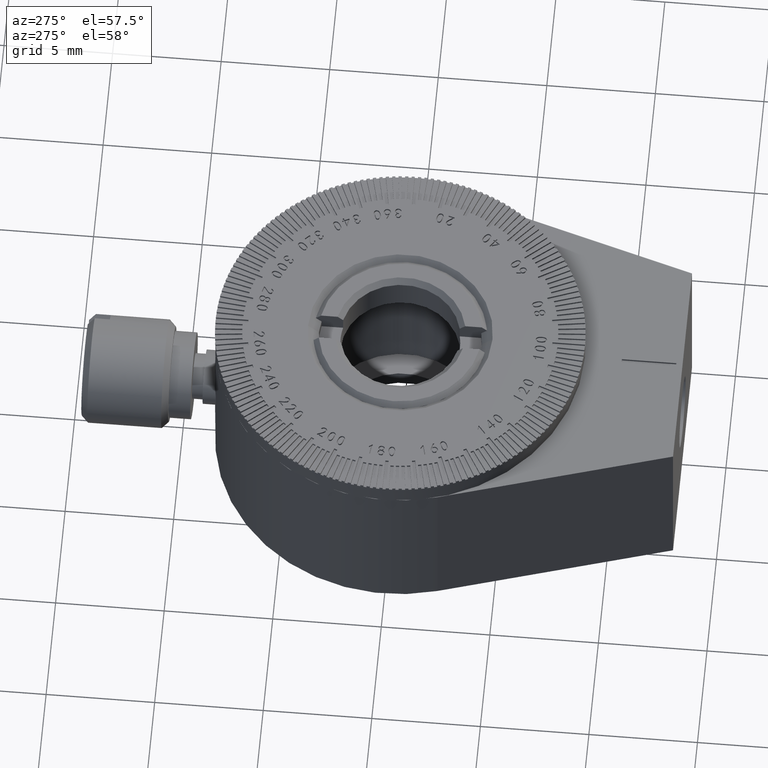
[diagram: clean part render]
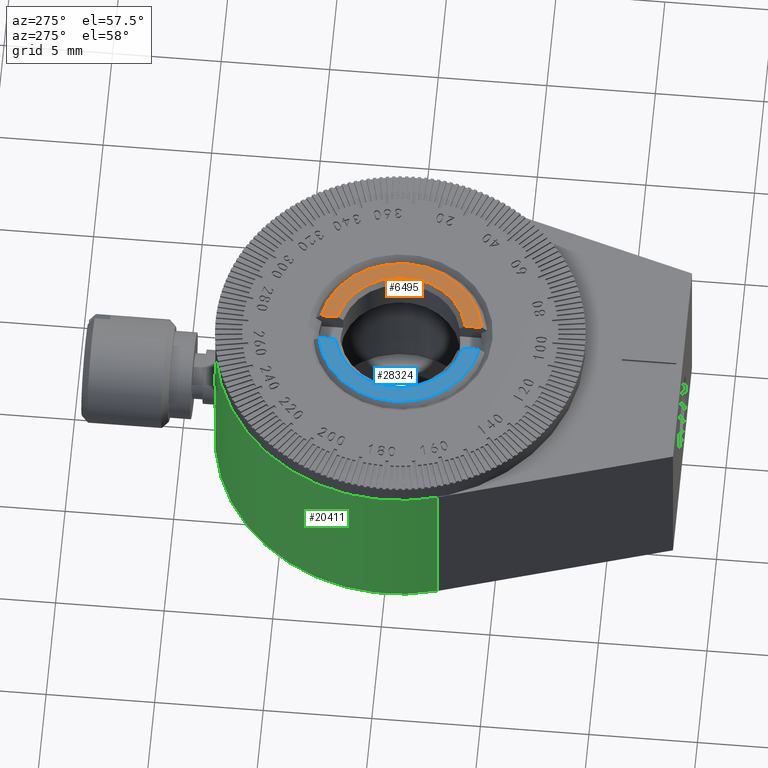
[diagram: same view with three faces highlighted in distinct colors, each labeled with its STEP entity id]
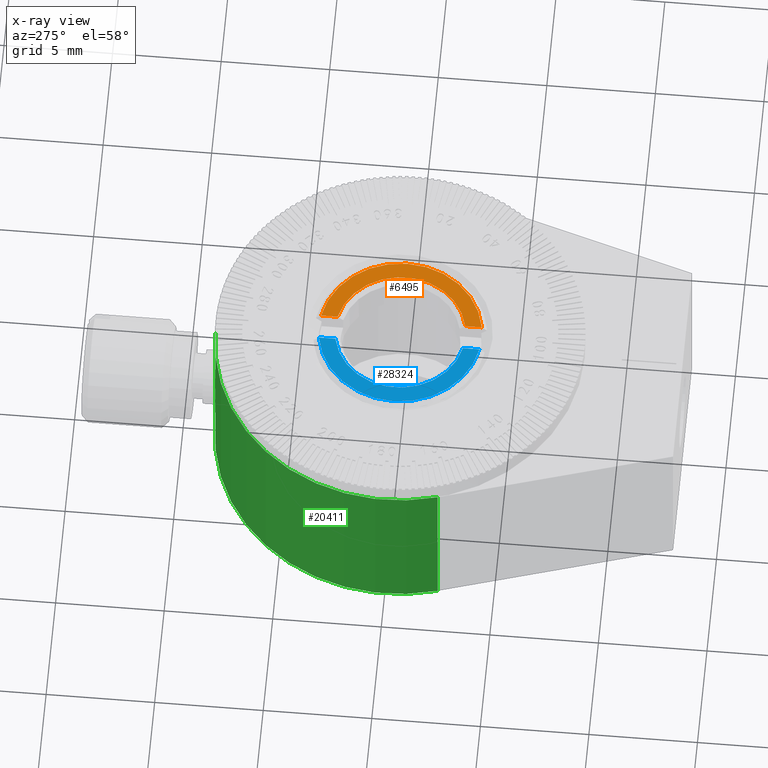
[diagram: x-ray of the same camera — body ghosted, the three highlighted faces saturated]
A machine part, auxiliary view with three faces highlighted in distinct colors.
The next image is the same camera in x-ray (body ghosted, the three faces saturated) — at least one of them is partly hidden behind the body in this view.
Their STEP definitions:

[orange] entity #6495 — the highlighted planar face has unit normal (-0, 0, 1).
#2177 = CIRCLE ( 'NONE', #32924, 3.000000000000004441 ) ;
#5446 = ORIENTED_EDGE ( 'NONE', *, *, #44589, .T. ) ;
#6495 = ADVANCED_FACE ( 'NONE', ( #52952 ), #53271, .T. ) ;
#7270 = EDGE_LOOP ( 'NONE', ( #31209, #5446, #46829, #28589 ) ) ;
#8771 = DIRECTION ( 'NONE',  ( 1.000000000000000000, 0.000000000000000000, 0.000000000000000000 ) ) ;
#9619 = EDGE_CURVE ( 'NONE', #44584, #45921, #2177, .T. ) ;
#13381 = DIRECTION ( 'NONE',  ( 1.000000000000000000, 0.000000000000000000, 0.000000000000000000 ) ) ;
#14407 = CARTESIAN_POINT ( 'NONE',  ( 0.000000000000000000, 0.000000000000000000, 0.000000000000000000 ) ) ;
#16378 = CARTESIAN_POINT ( 'NONE',  ( -2.939387691339818254, -0.5999999999999998668, 0.000000000000000000 ) ) ;
#20214 = CARTESIAN_POINT ( 'NONE',  ( 0.000000000000000000, 0.000000000000000000, 0.000000000000000000 ) ) ;
#23450 = AXIS2_PLACEMENT_3D ( 'NONE', #20214, #43631, #63227 ) ;
#28589 = ORIENTED_EDGE ( 'NONE', *, *, #9619, .T. ) ;
#31209 = ORIENTED_EDGE ( 'NONE', *, *, #48348, .F. ) ;
#32059 = VECTOR ( 'NONE', #8771, 1000.000000000000000 ) ;
#32924 = AXIS2_PLACEMENT_3D ( 'NONE', #14407, #62560, #57111 ) ;
#33700 = EDGE_CURVE ( 'NONE', #44584, #47563, #37984, .T. ) ;
#34196 = CARTESIAN_POINT ( 'NONE',  ( 0.000000000000000000, 0.000000000000000000, 0.000000000000000000 ) ) ;
#37984 = LINE ( 'NONE', #52728, #32059 ) ;
#39491 = LINE ( 'NONE', #58778, #49385 ) ;
#43631 = DIRECTION ( 'NONE',  ( 0.000000000000000000, 0.000000000000000000, 1.000000000000000000 ) ) ;
#44584 = VERTEX_POINT ( 'NONE', #58285 ) ;
#44589 = EDGE_CURVE ( 'NONE', #55792, #47563, #48166, .T. ) ;
#45921 = VERTEX_POINT ( 'NONE', #16378 ) ;
#46672 = CARTESIAN_POINT ( 'NONE',  ( -3.701688803775923464, -0.5999999999999998668, 0.000000000000000000 ) ) ;
#46829 = ORIENTED_EDGE ( 'NONE', *, *, #33700, .F. ) ;
#47563 = VERTEX_POINT ( 'NONE', #49841 ) ;
#48004 = DIRECTION ( 'NONE',  ( 0.000000000000000000, 0.000000000000000000, 1.000000000000000000 ) ) ;
#48166 = CIRCLE ( 'NONE', #58445, 3.750000000000003553 ) ;
#48348 = EDGE_CURVE ( 'NONE', #55792, #45921, #39491, .T. ) ;
#49385 = VECTOR ( 'NONE', #55211, 1000.000000000000000 ) ;
#49841 = CARTESIAN_POINT ( 'NONE',  ( 3.701688803775923464, -0.5999999999999998668, 0.000000000000000000 ) ) ;
#52728 = CARTESIAN_POINT ( 'NONE',  ( -50000.00000000000728, -0.5999999999999998668, 0.000000000000000000 ) ) ;
#52952 = FACE_OUTER_BOUND ( 'NONE', #7270, .T. ) ;
#53271 = PLANE ( 'NONE',  #23450 ) ;
#55211 = DIRECTION ( 'NONE',  ( 1.000000000000000000, 0.000000000000000000, 0.000000000000000000 ) ) ;
#55792 = VERTEX_POINT ( 'NONE', #46672 ) ;
#57111 = DIRECTION ( 'NONE',  ( 1.000000000000000000, 0.000000000000000000, 0.000000000000000000 ) ) ;
#58285 = CARTESIAN_POINT ( 'NONE',  ( 2.939387691339818254, -0.5999999999999998668, 0.000000000000000000 ) ) ;
#58445 = AXIS2_PLACEMENT_3D ( 'NONE', #34196, #48004, #13381 ) ;
#58778 = CARTESIAN_POINT ( 'NONE',  ( -50000.00000000000728, -0.5999999999999998668, 0.000000000000000000 ) ) ;
#62560 = DIRECTION ( 'NONE',  ( -0.000000000000000000, -0.000000000000000000, -1.000000000000000000 ) ) ;
#63227 = DIRECTION ( 'NONE',  ( 1.000000000000000000, 0.000000000000000000, -0.000000000000000000 ) ) ;

[blue] entity #28324 — the highlighted planar face has unit normal (-0, 0, 1).
#1599 = LINE ( 'NONE', #16377, #6645 ) ;
#4810 = DIRECTION ( 'NONE',  ( -1.000000000000000000, -0.000000000000000000, -0.000000000000000000 ) ) ;
#5287 = AXIS2_PLACEMENT_3D ( 'NONE', #28716, #48578, #24218 ) ;
#6437 = EDGE_CURVE ( 'NONE', #58582, #44095, #48750, .T. ) ;
#6645 = VECTOR ( 'NONE', #56161, 1000.000000000000000 ) ;
#7099 = VERTEX_POINT ( 'NONE', #7903 ) ;
#7903 = CARTESIAN_POINT ( 'NONE',  ( 3.701688803775923464, 0.6000000000000000888, 0.000000000000000000 ) ) ;
#8849 = EDGE_LOOP ( 'NONE', ( #13885, #55577, #38883, #29591 ) ) ;
#10500 = DIRECTION ( 'NONE',  ( 1.000000000000000000, 0.000000000000000000, -0.000000000000000000 ) ) ;
#13885 = ORIENTED_EDGE ( 'NONE', *, *, #38605, .F. ) ;
#16377 = CARTESIAN_POINT ( 'NONE',  ( -50000.00000000001455, 0.6000000000000000888, 0.000000000000000000 ) ) ;
#20841 = DIRECTION ( 'NONE',  ( 1.000000000000000000, 0.000000000000000000, 0.000000000000000000 ) ) ;
#22296 = CIRCLE ( 'NONE', #54059, 3.750000000000003553 ) ;
#24218 = DIRECTION ( 'NONE',  ( 1.000000000000000000, 0.000000000000000000, 0.000000000000000000 ) ) ;
#25892 = PLANE ( 'NONE',  #38822 ) ;
#26615 = DIRECTION ( 'NONE',  ( 0.000000000000000000, 0.000000000000000000, 1.000000000000000000 ) ) ;
#27741 = CARTESIAN_POINT ( 'NONE',  ( -3.701688803775923464, 0.6000000000000000888, 0.000000000000000000 ) ) ;
#28324 = ADVANCED_FACE ( 'NONE', ( #35512 ), #25892, .T. ) ;
#28716 = CARTESIAN_POINT ( 'NONE',  ( 0.000000000000000000, 0.000000000000000000, 0.000000000000000000 ) ) ;
#29591 = ORIENTED_EDGE ( 'NONE', *, *, #47429, .T. ) ;
#34895 = CARTESIAN_POINT ( 'NONE',  ( 0.000000000000000000, 0.000000000000000000, 0.000000000000000000 ) ) ;
#35512 = FACE_OUTER_BOUND ( 'NONE', #8849, .T. ) ;
#35908 = CARTESIAN_POINT ( 'NONE',  ( 0.000000000000000000, 0.000000000000000000, 0.000000000000000000 ) ) ;
#38605 = EDGE_CURVE ( 'NONE', #7099, #42789, #1599, .T. ) ;
#38822 = AXIS2_PLACEMENT_3D ( 'NONE', #34895, #45454, #10500 ) ;
#38883 = ORIENTED_EDGE ( 'NONE', *, *, #6437, .F. ) ;
#39432 = CARTESIAN_POINT ( 'NONE',  ( -50000.00000000001455, 0.6000000000000000888, 0.000000000000000000 ) ) ;
#40827 = VECTOR ( 'NONE', #4810, 1000.000000000000000 ) ;
#42789 = VERTEX_POINT ( 'NONE', #56452 ) ;
#44095 = VERTEX_POINT ( 'NONE', #27741 ) ;
#45454 = DIRECTION ( 'NONE',  ( 0.000000000000000000, 0.000000000000000000, 1.000000000000000000 ) ) ;
#47429 = EDGE_CURVE ( 'NONE', #58582, #42789, #48294, .T. ) ;
#48294 = CIRCLE ( 'NONE', #5287, 3.000000000000004441 ) ;
#48578 = DIRECTION ( 'NONE',  ( -0.000000000000000000, -0.000000000000000000, -1.000000000000000000 ) ) ;
#48750 = LINE ( 'NONE', #39432, #40827 ) ;
#54059 = AXIS2_PLACEMENT_3D ( 'NONE', #35908, #26615, #20841 ) ;
#55577 = ORIENTED_EDGE ( 'NONE', *, *, #61869, .T. ) ;
#56161 = DIRECTION ( 'NONE',  ( -1.000000000000000000, -0.000000000000000000, -0.000000000000000000 ) ) ;
#56452 = CARTESIAN_POINT ( 'NONE',  ( 2.939387691339818254, 0.6000000000000000888, 0.000000000000000000 ) ) ;
#58582 = VERTEX_POINT ( 'NONE', #60114 ) ;
#60114 = CARTESIAN_POINT ( 'NONE',  ( -2.939387691339818254, 0.6000000000000000888, 0.000000000000000000 ) ) ;
#61869 = EDGE_CURVE ( 'NONE', #7099, #44095, #22296, .T. ) ;

[green] entity #20411 — the highlighted cylindrical surface (partial cylindrical patch) has radius 8.5 mm, axis along (-0, 0, -1).
#584 = LINE ( 'NONE', #47873, #31774 ) ;
#1005 = VERTEX_POINT ( 'NONE', #36069 ) ;
#1914 = B_SPLINE_CURVE_WITH_KNOTS ( 'NONE', 3,
 ( #52554, #31813, #41417, #61017, #14048, #8595, #46555, #17049, #36619, #47733 ),
 .UNSPECIFIED., .F., .F.,
 ( 4, 2, 2, 2, 4 ),
 ( 0.001604141889492231941, 0.002004989760996850594, 0.002405837632501468815, 0.002806685504006087468, 0.003207533375510706122 ),
 .UNSPECIFIED. ) ;
#1934 = CARTESIAN_POINT ( 'NONE',  ( -0.1355956368945557822, 2.975000000000002753, -8.500000000000003553 ) ) ;
#2161 = DIRECTION ( 'NONE',  ( 0.000000000000000000, 1.000000000000000000, 0.000000000000000000 ) ) ;
#2488 = VERTEX_POINT ( 'NONE', #49606 ) ;
#3449 = AXIS2_PLACEMENT_3D ( 'NONE', #22061, #2161, #17890 ) ;
#4081 = DIRECTION ( 'NONE',  ( -0.000000000000000000, -1.000000000000000000, -0.000000000000000000 ) ) ;
#4895 = VECTOR ( 'NONE', #44531, 1000.000000000000000 ) ;
#5801 = VERTEX_POINT ( 'NONE', #28488 ) ;
#6208 = EDGE_CURVE ( 'NONE', #42056, #6301, #34396, .T. ) ;
#6301 = VERTEX_POINT ( 'NONE', #54903 ) ;
#7049 = CARTESIAN_POINT ( 'NONE',  ( -8.146965083051258105, 8.000000000000000000, 2.424244198826444041 ) ) ;
#8595 = CARTESIAN_POINT ( 'NONE',  ( -0.8204522097726676400, 4.629102387186123657, -8.460854985813979212 ) ) ;
#10219 = DIRECTION ( 'NONE',  ( -0.000000000000000000, -1.000000000000000000, -0.000000000000000000 ) ) ;
#10234 = AXIS2_PLACEMENT_3D ( 'NONE', #57657, #4081, #43200 ) ;
#11435 = VERTEX_POINT ( 'NONE', #36643 ) ;
#11982 = CIRCLE ( 'NONE', #47851, 8.500000000000001776 ) ;
#13035 = VERTEX_POINT ( 'NONE', #35329 ) ;
#14048 = CARTESIAN_POINT ( 'NONE',  ( -0.6292250817222401205, 4.820358116078445221, -8.477221520995293247 ) ) ;
#14891 = EDGE_LOOP ( 'NONE', ( #56951, #48568, #47181, #60299, #48830, #55856, #35645 ) ) ;
#15976 = EDGE_CURVE ( 'NONE', #5801, #1005, #21102, .T. ) ;
#16054 = CARTESIAN_POINT ( 'NONE',  ( -0.8958302475168253842, 3.484291012186373049, -8.452818151885551856 ) ) ;
#17049 = CARTESIAN_POINT ( 'NONE',  ( -0.9983722145327245112, 4.268174618798910913, -8.441322653163334522 ) ) ;
#17890 = DIRECTION ( 'NONE',  ( 0.000000000000000000, 0.000000000000000000, 1.000000000000000000 ) ) ;
#20361 = EDGE_CURVE ( 'NONE', #11435, #13035, #1914, .T. ) ;
#20411 = ADVANCED_FACE ( 'NONE', ( #29391 ), #62792, .T. ) ;
#21102 = LINE ( 'NONE', #40662, #4895 ) ;
#21513 = CARTESIAN_POINT ( 'NONE',  ( 3.606840077208035911E-17, 2.975000000000001865, -8.500000000000001776 ) ) ;
#21549 = EDGE_CURVE ( 'NONE', #2488, #42056, #11982, .T. ) ;
#22061 = CARTESIAN_POINT ( 'NONE',  ( 0.000000000000000000, 0.000000000000000000, 0.000000000000000000 ) ) ;
#24981 = CIRCLE ( 'NONE', #3449, 8.500000000000001776 ) ;
#28488 = CARTESIAN_POINT ( 'NONE',  ( 3.606840077208035911E-17, 2.975000000000001865, -8.500000000000001776 ) ) ;
#29391 = FACE_OUTER_BOUND ( 'NONE', #14891, .T. ) ;
#30544 = EDGE_CURVE ( 'NONE', #2488, #11435, #584, .T. ) ;
#31451 = CARTESIAN_POINT ( 'NONE',  ( -0.2686219410902970228, 3.001733747897494364, -8.496663481669990858 ) ) ;
#31774 = VECTOR ( 'NONE', #10219, 1000.000000000000000 ) ;
#31813 = CARTESIAN_POINT ( 'NONE',  ( -0.1338156775417506938, 5.024999999999757883, -8.499999999999971578 ) ) ;
#34396 = LINE ( 'NONE', #49155, #52121 ) ;
#35329 = CARTESIAN_POINT ( 'NONE',  ( -1.024999999999998135, 4.000000000000000000, -8.437972209008515634 ) ) ;
#35645 = ORIENTED_EDGE ( 'NONE', *, *, #6208, .F. ) ;
#36069 = CARTESIAN_POINT ( 'NONE',  ( 0.000000000000000000, 0.000000000000000000, -8.500000000000001776 ) ) ;
#36585 = CARTESIAN_POINT ( 'NONE',  ( -0.9980788456930348440, 3.731101858954228412, -8.441355646991301143 ) ) ;
#36619 = CARTESIAN_POINT ( 'NONE',  ( -1.024999999999998135, 4.133823193651420702, -8.437972209008517410 ) ) ;
#36643 = CARTESIAN_POINT ( 'NONE',  ( -1.232478612686890334E-12, 5.025000000010680701, -8.500000000001289635 ) ) ;
#37141 = DIRECTION ( 'NONE',  ( 0.000000000000000000, 1.000000000000000000, 0.000000000000000000 ) ) ;
#40662 = CARTESIAN_POINT ( 'NONE',  ( 0.000000000000000000, 8.000000000000000000, -8.500000000000001776 ) ) ;
#41071 = CARTESIAN_POINT ( 'NONE',  ( -0.5169369157935224113, 3.104751720240813029, -8.485176739059085094 ) ) ;
#41384 = CARTESIAN_POINT ( 'NONE',  ( -1.024999999999998135, 4.000000000000000000, -8.437972209008515634 ) ) ;
#41417 = CARTESIAN_POINT ( 'NONE',  ( -0.2681806848300184454, 4.998378471319837146, -8.496677137878103636 ) ) ;
#42056 = VERTEX_POINT ( 'NONE', #7049 ) ;
#43200 = DIRECTION ( 'NONE',  ( 0.000000000000000000, 0.000000000000000000, -1.000000000000000000 ) ) ;
#44531 = DIRECTION ( 'NONE',  ( -0.000000000000000000, -1.000000000000000000, -0.000000000000000000 ) ) ;
#45889 = CARTESIAN_POINT ( 'NONE',  ( -0.6305220807644215109, 3.180892722873718270, -8.477112511734040012 ) ) ;
#46521 = CARTESIAN_POINT ( 'NONE',  ( -0.8195108765853845734, 3.370002580218789401, -8.460933550979323314 ) ) ;
#46555 = CARTESIAN_POINT ( 'NONE',  ( -0.8955712566450089174, 4.516349522310418863, -8.452847291760965831 ) ) ;
#47181 = ORIENTED_EDGE ( 'NONE', *, *, #20361, .T. ) ;
#47733 = CARTESIAN_POINT ( 'NONE',  ( -1.024999999999998135, 4.000000000000000000, -8.437972209008515634 ) ) ;
#47851 = AXIS2_PLACEMENT_3D ( 'NONE', #52531, #37141, #62177 ) ;
#47873 = CARTESIAN_POINT ( 'NONE',  ( 0.000000000000000000, 8.000000000000000000, -8.500000000000001776 ) ) ;
#48568 = ORIENTED_EDGE ( 'NONE', *, *, #30544, .T. ) ;
#48830 = ORIENTED_EDGE ( 'NONE', *, *, #15976, .T. ) ;
#49155 = CARTESIAN_POINT ( 'NONE',  ( -8.146965083051258105, 8.000000000000000000, 2.424244198826444041 ) ) ;
#49606 = CARTESIAN_POINT ( 'NONE',  ( 0.000000000000000000, 8.000000000000000000, -8.500000000000001776 ) ) ;
#51231 = B_SPLINE_CURVE_WITH_KNOTS ( 'NONE', 3,
 ( #41384, #60665, #36585, #16054, #46521, #45889, #41071, #31451, #1934, #21513 ),
 .UNSPECIFIED., .F., .F.,
 ( 4, 2, 2, 2, 4 ),
 ( 0.003207533375510706122, 0.003608562471928251306, 0.004009591568345796490, 0.004410620664763341241, 0.004811649761180886858 ),
 .UNSPECIFIED. ) ;
#52121 = VECTOR ( 'NONE', #52473, 1000.000000000000000 ) ;
#52473 = DIRECTION ( 'NONE',  ( -0.000000000000000000, -1.000000000000000000, -0.000000000000000000 ) ) ;
#52531 = CARTESIAN_POINT ( 'NONE',  ( 0.000000000000000000, 8.000000000000000000, 0.000000000000000000 ) ) ;
#52554 = CARTESIAN_POINT ( 'NONE',  ( -1.232478612686890334E-12, 5.025000000010680701, -8.500000000001289635 ) ) ;
#54076 = EDGE_CURVE ( 'NONE', #1005, #6301, #24981, .T. ) ;
#54903 = CARTESIAN_POINT ( 'NONE',  ( -8.146965083051258105, 0.000000000000000000, 2.424244198826444041 ) ) ;
#55856 = ORIENTED_EDGE ( 'NONE', *, *, #54076, .T. ) ;
#56347 = EDGE_CURVE ( 'NONE', #13035, #5801, #51231, .T. ) ;
#56951 = ORIENTED_EDGE ( 'NONE', *, *, #21549, .F. ) ;
#57657 = CARTESIAN_POINT ( 'NONE',  ( 0.000000000000000000, 8.000000000000000000, 0.000000000000000000 ) ) ;
#60299 = ORIENTED_EDGE ( 'NONE', *, *, #56347, .T. ) ;
#60665 = CARTESIAN_POINT ( 'NONE',  ( -1.024999999999997691, 3.866116304351835176, -8.437972209008515634 ) ) ;
#61017 = CARTESIAN_POINT ( 'NONE',  ( -0.5164576771872568806, 4.895517682340876142, -8.485205638800429995 ) ) ;
#62177 = DIRECTION ( 'NONE',  ( 0.000000000000000000, 0.000000000000000000, 1.000000000000000000 ) ) ;
#62792 = CYLINDRICAL_SURFACE ( 'NONE', #10234, 8.500000000000001776 ) ;